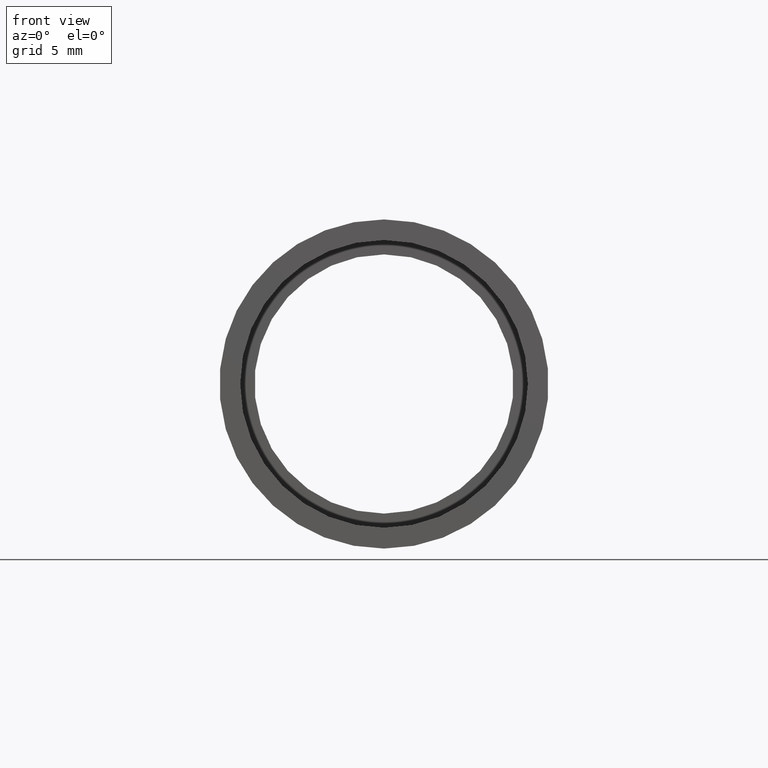
[diagram: clean part render]
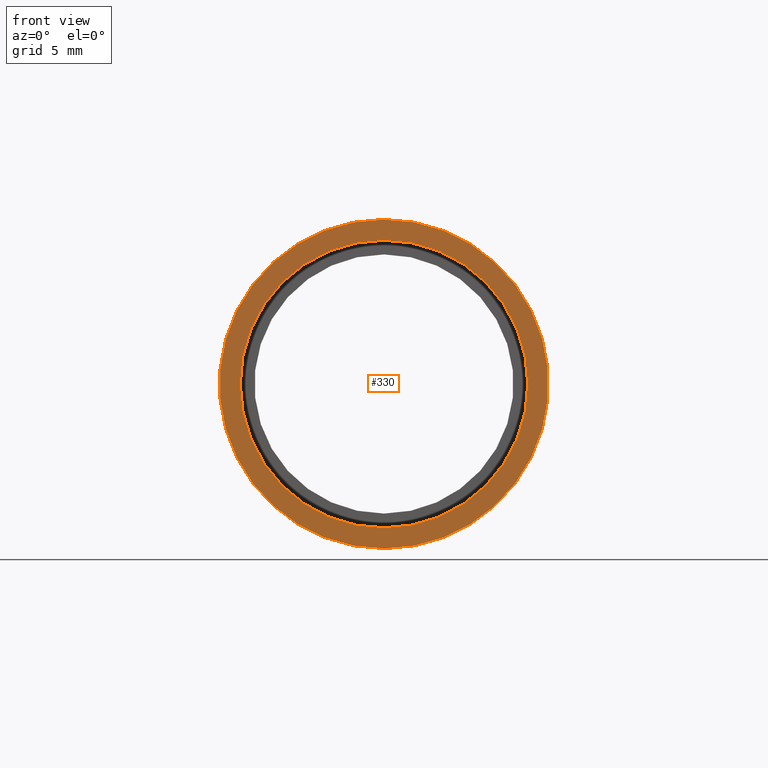
[diagram: same view with one face highlighted and labeled with its STEP entity id]
A machine part, front view. The second image highlights one B-rep face of the part: STEP entity #330.
In plain terms, the highlighted planar face has unit normal (-0, 1, 0).
Its self-contained STEP definition (entity closure, byte-faithful):
#13 = DIRECTION ( 'NONE',  ( -0.0000000000000000000, 1.000000000000000000, -0.0000000000000000000 ) ) ;
#14 = CARTESIAN_POINT ( 'NONE',  ( 0.0000000000000000000, -2.775557561562891400E-014, 0.0000000000000000000 ) ) ;
#20 = CARTESIAN_POINT ( 'NONE',  ( 11.10000000000002300, -1.590039098016662300E-014, 0.0000000000000000000 ) ) ;
#22 = ORIENTED_EDGE ( 'NONE', *, *, #385, .F. ) ;
#46 = PLANE ( 'NONE',  #479 ) ;
#48 = ORIENTED_EDGE ( 'NONE', *, *, #505, .T. ) ;
#50 = ORIENTED_EDGE ( 'NONE', *, *, #357, .F. ) ;
#51 = FACE_BOUND ( 'NONE', #325, .T. ) ;
#57 = DIRECTION ( 'NONE',  ( -0.0000000000000000000, 1.000000000000000000, -0.0000000000000000000 ) ) ;
#66 = ORIENTED_EDGE ( 'NONE', *, *, #581, .T. ) ;
#79 = VERTEX_POINT ( 'NONE', #140 ) ;
#85 = DIRECTION ( 'NONE',  ( -0.0000000000000000000, 1.000000000000000000, -0.0000000000000000000 ) ) ;
#87 = CARTESIAN_POINT ( 'NONE',  ( 0.0000000000000000000, -2.775557561562891400E-014, 0.0000000000000000000 ) ) ;
#108 = CIRCLE ( 'NONE', #571, 12.70000000000001900 ) ;
#132 = DIRECTION ( 'NONE',  ( 0.0000000000000000000, 0.0000000000000000000, 1.000000000000000000 ) ) ;
#140 = CARTESIAN_POINT ( 'NONE',  ( 0.0000000000000000000, -2.775557561562891400E-014, 11.10000000000002300 ) ) ;
#151 = DIRECTION ( 'NONE',  ( 0.0000000000000000000, 0.0000000000000000000, 1.000000000000000000 ) ) ;
#189 = CARTESIAN_POINT ( 'NONE',  ( 1.359357947053564900E-015, -2.775557561562891400E-014, -11.10000000000002300 ) ) ;
#196 = CARTESIAN_POINT ( 'NONE',  ( 0.0000000000000000000, -2.775557561562891400E-014, 12.70000000000001900 ) ) ;
#236 = AXIS2_PLACEMENT_3D ( 'NONE', #14, #543, #132 ) ;
#293 = AXIS2_PLACEMENT_3D ( 'NONE', #362, #57, #509 ) ;
#321 = CIRCLE ( 'NONE', #329, 12.70000000000001900 ) ;
#325 = EDGE_LOOP ( 'NONE', ( #66, #48 ) ) ;
#329 = AXIS2_PLACEMENT_3D ( 'NONE', #539, #13, #588 ) ;
#330 = ADVANCED_FACE ( 'NONE', ( #498, #51 ), #46, .F. ) ;
#338 = DIRECTION ( 'NONE',  ( 0.0000000000000000000, 0.0000000000000000000, 1.000000000000000000 ) ) ;
#357 = EDGE_CURVE ( 'NONE', #606, #574, #321, .T. ) ;
#362 = CARTESIAN_POINT ( 'NONE',  ( 0.0000000000000000000, -2.775557561562891400E-014, 0.0000000000000000000 ) ) ;
#385 = EDGE_CURVE ( 'NONE', #574, #606, #108, .T. ) ;
#442 = EDGE_LOOP ( 'NONE', ( #22, #50 ) ) ;
#479 = AXIS2_PLACEMENT_3D ( 'NONE', #20, #593, #151 ) ;
#498 = FACE_OUTER_BOUND ( 'NONE', #442, .T. ) ;
#505 = EDGE_CURVE ( 'NONE', #583, #79, #592, .T. ) ;
#509 = DIRECTION ( 'NONE',  ( 0.0000000000000000000, 0.0000000000000000000, 1.000000000000000000 ) ) ;
#535 = CARTESIAN_POINT ( 'NONE',  ( 1.555301434917140800E-015, -2.775557561562891400E-014, -12.70000000000001900 ) ) ;
#539 = CARTESIAN_POINT ( 'NONE',  ( 0.0000000000000000000, -2.775557561562891400E-014, 0.0000000000000000000 ) ) ;
#543 = DIRECTION ( 'NONE',  ( -0.0000000000000000000, 1.000000000000000000, -0.0000000000000000000 ) ) ;
#571 = AXIS2_PLACEMENT_3D ( 'NONE', #87, #85, #338 ) ;
#574 = VERTEX_POINT ( 'NONE', #196 ) ;
#581 = EDGE_CURVE ( 'NONE', #79, #583, #584, .T. ) ;
#583 = VERTEX_POINT ( 'NONE', #189 ) ;
#584 = CIRCLE ( 'NONE', #236, 11.10000000000002300 ) ;
#588 = DIRECTION ( 'NONE',  ( 0.0000000000000000000, 0.0000000000000000000, 1.000000000000000000 ) ) ;
#592 = CIRCLE ( 'NONE', #293, 11.10000000000002300 ) ;
#593 = DIRECTION ( 'NONE',  ( -0.0000000000000000000, 1.000000000000000000, 0.0000000000000000000 ) ) ;
#606 = VERTEX_POINT ( 'NONE', #535 ) ;